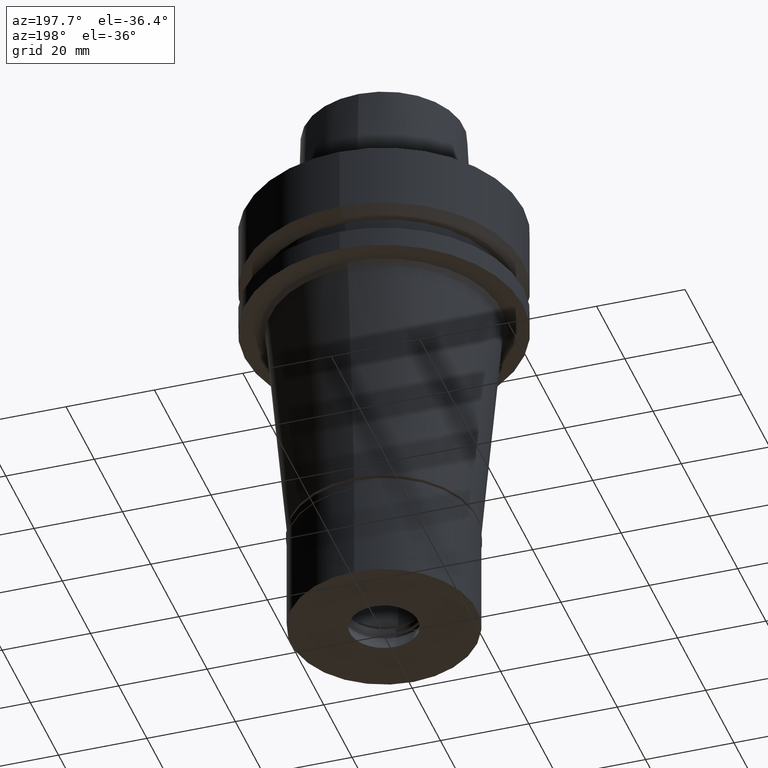
[diagram: clean part render]
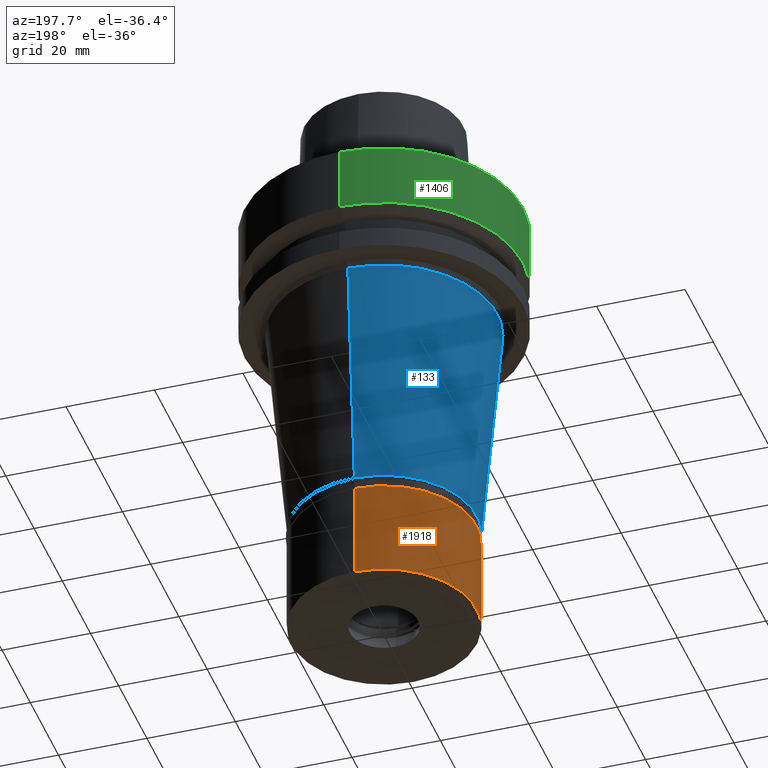
[diagram: same view with three faces highlighted in distinct colors, each labeled with its STEP entity id]
A machine part, auxiliary view with three faces highlighted in distinct colors.
Their STEP definitions:

[orange] entity #1918 — the highlighted cylindrical surface (partial cylindrical patch) has radius 21 mm, axis along (0, 0, -1).
#45 = EDGE_CURVE ( 'NONE', #2351, #1226, #79, .T. ) ;
#79 = LINE ( 'NONE', #92, #368 ) ;
#92 = CARTESIAN_POINT ( 'NONE',  ( 0.0000000000000000000, -21.00000000000000000, -2.000000000000000000 ) ) ;
#155 = AXIS2_PLACEMENT_3D ( 'NONE', #2384, #1733, #2171 ) ;
#188 = LINE ( 'NONE', #846, #569 ) ;
#271 = EDGE_CURVE ( 'NONE', #919, #1226, #467, .T. ) ;
#368 = VECTOR ( 'NONE', #728, 1000.000000000000000 ) ;
#467 = CIRCLE ( 'NONE', #844, 21.00000000000000000 ) ;
#569 = VECTOR ( 'NONE', #1741, 1000.000000000000000 ) ;
#628 = DIRECTION ( 'NONE',  ( 0.0000000000000000000, 0.0000000000000000000, -1.000000000000000000 ) ) ;
#643 = CARTESIAN_POINT ( 'NONE',  ( 0.0000000000000000000, 0.0000000000000000000, -2.000000000000000000 ) ) ;
#644 = DIRECTION ( 'NONE',  ( 0.0000000000000000000, 1.000000000000000000, 0.0000000000000000000 ) ) ;
#728 = DIRECTION ( 'NONE',  ( 0.0000000000000000000, 0.0000000000000000000, -1.000000000000000000 ) ) ;
#829 = CARTESIAN_POINT ( 'NONE',  ( 0.0000000000000000000, 21.00000000000000000, -2.000000000000000000 ) ) ;
#838 = FACE_OUTER_BOUND ( 'NONE', #1267, .T. ) ;
#844 = AXIS2_PLACEMENT_3D ( 'NONE', #2306, #2238, #644 ) ;
#846 = CARTESIAN_POINT ( 'NONE',  ( 0.0000000000000000000, 21.00000000000000000, -2.000000000000000000 ) ) ;
#919 = VERTEX_POINT ( 'NONE', #2776 ) ;
#921 = EDGE_CURVE ( 'NONE', #1183, #919, #188, .T. ) ;
#1034 = CIRCLE ( 'NONE', #2013, 21.00000000000000000 ) ;
#1183 = VERTEX_POINT ( 'NONE', #829 ) ;
#1226 = VERTEX_POINT ( 'NONE', #2485 ) ;
#1267 = EDGE_LOOP ( 'NONE', ( #1940, #2862, #1928, #2222 ) ) ;
#1685 = CARTESIAN_POINT ( 'NONE',  ( 0.0000000000000000000, -21.00000000000000000, -2.000000000000000000 ) ) ;
#1733 = DIRECTION ( 'NONE',  ( 0.0000000000000000000, 0.0000000000000000000, -1.000000000000000000 ) ) ;
#1741 = DIRECTION ( 'NONE',  ( 0.0000000000000000000, 0.0000000000000000000, -1.000000000000000000 ) ) ;
#1918 = ADVANCED_FACE ( 'NONE', ( #838 ), #2411, .T. ) ;
#1928 = ORIENTED_EDGE ( 'NONE', *, *, #2589, .T. ) ;
#1940 = ORIENTED_EDGE ( 'NONE', *, *, #271, .T. ) ;
#1942 = DIRECTION ( 'NONE',  ( 0.0000000000000000000, -1.000000000000000000, 0.0000000000000000000 ) ) ;
#2013 = AXIS2_PLACEMENT_3D ( 'NONE', #643, #628, #1942 ) ;
#2171 = DIRECTION ( 'NONE',  ( 0.0000000000000000000, -1.000000000000000000, 0.0000000000000000000 ) ) ;
#2222 = ORIENTED_EDGE ( 'NONE', *, *, #921, .T. ) ;
#2238 = DIRECTION ( 'NONE',  ( 0.0000000000000000000, 0.0000000000000000000, 1.000000000000000000 ) ) ;
#2306 = CARTESIAN_POINT ( 'NONE',  ( 0.0000000000000000000, 0.0000000000000000000, -24.29999999999999716 ) ) ;
#2351 = VERTEX_POINT ( 'NONE', #1685 ) ;
#2384 = CARTESIAN_POINT ( 'NONE',  ( 0.0000000000000000000, 0.0000000000000000000, 0.0000000000000000000 ) ) ;
#2411 = CYLINDRICAL_SURFACE ( 'NONE', #155, 21.00000000000000000 ) ;
#2485 = CARTESIAN_POINT ( 'NONE',  ( 0.0000000000000000000, -21.00000000000000000, -24.29999999999999716 ) ) ;
#2589 = EDGE_CURVE ( 'NONE', #2351, #1183, #1034, .T. ) ;
#2776 = CARTESIAN_POINT ( 'NONE',  ( 0.0000000000000000000, 21.00000000000000000, -24.29999999999999716 ) ) ;
#2862 = ORIENTED_EDGE ( 'NONE', *, *, #45, .F. ) ;

[blue] entity #133 — the highlighted conical surface has half-angle 5 deg.
#48 = CARTESIAN_POINT ( 'NONE',  ( 0.0000000000000000000, 21.00000000000000000, -79.90000000000000568 ) ) ;
#99 = CARTESIAN_POINT ( 'NONE',  ( 0.0000000000000000000, -25.62815030052000154, -27.00000000000000000 ) ) ;
#133 = ADVANCED_FACE ( 'NONE', ( #1106 ), #1209, .T. ) ;
#171 = EDGE_CURVE ( 'NONE', #2804, #1711, #1212, .T. ) ;
#247 = DIRECTION ( 'NONE',  ( 0.0000000000000000000, 0.0000000000000000000, -1.000000000000000000 ) ) ;
#431 = CARTESIAN_POINT ( 'NONE',  ( 0.0000000000000000000, 0.0000000000000000000, -79.90000000000000568 ) ) ;
#451 = DIRECTION ( 'NONE',  ( 0.0000000000000000000, 1.000000000000000000, 0.0000000000000000000 ) ) ;
#541 = VERTEX_POINT ( 'NONE', #2055 ) ;
#815 = ORIENTED_EDGE ( 'NONE', *, *, #171, .T. ) ;
#930 = CARTESIAN_POINT ( 'NONE',  ( 0.0000000000000000000, -25.62815030052000154, -27.00000000000000000 ) ) ;
#989 = CIRCLE ( 'NONE', #1605, 21.00000000000000000 ) ;
#996 = ORIENTED_EDGE ( 'NONE', *, *, #1381, .T. ) ;
#1099 = DIRECTION ( 'NONE',  ( 0.0000000000000000000, -0.08715574274765398866, -0.9961946980917458783 ) ) ;
#1106 = FACE_OUTER_BOUND ( 'NONE', #1470, .T. ) ;
#1120 = CARTESIAN_POINT ( 'NONE',  ( 0.0000000000000000000, 0.0000000000000000000, -53.44999999999999574 ) ) ;
#1192 = ORIENTED_EDGE ( 'NONE', *, *, #1216, .F. ) ;
#1209 = CONICAL_SURFACE ( 'NONE', #2818, 23.31407515026000254, 0.08726646259969973729 ) ;
#1212 = CIRCLE ( 'NONE', #2819, 25.62815030052000154 ) ;
#1216 = EDGE_CURVE ( 'NONE', #2804, #541, #2360, .T. ) ;
#1308 = LINE ( 'NONE', #2845, #1884 ) ;
#1381 = EDGE_CURVE ( 'NONE', #2063, #541, #989, .T. ) ;
#1470 = EDGE_LOOP ( 'NONE', ( #996, #1192, #815, #1863 ) ) ;
#1564 = DIRECTION ( 'NONE',  ( 0.0000000000000000000, 0.0000000000000000000, 1.000000000000000000 ) ) ;
#1605 = AXIS2_PLACEMENT_3D ( 'NONE', #431, #1564, #2847 ) ;
#1624 = DIRECTION ( 'NONE',  ( 0.0000000000000000000, -1.000000000000000000, 0.0000000000000000000 ) ) ;
#1647 = VECTOR ( 'NONE', #2772, 1000.000000000000000 ) ;
#1711 = VERTEX_POINT ( 'NONE', #2114 ) ;
#1863 = ORIENTED_EDGE ( 'NONE', *, *, #1886, .T. ) ;
#1884 = VECTOR ( 'NONE', #1099, 1000.000000000000000 ) ;
#1886 = EDGE_CURVE ( 'NONE', #1711, #2063, #1308, .T. ) ;
#2022 = DIRECTION ( 'NONE',  ( 0.0000000000000000000, 0.0000000000000000000, 1.000000000000000000 ) ) ;
#2055 = CARTESIAN_POINT ( 'NONE',  ( 0.0000000000000000000, -21.00000000000000000, -79.90000000000000568 ) ) ;
#2063 = VERTEX_POINT ( 'NONE', #48 ) ;
#2114 = CARTESIAN_POINT ( 'NONE',  ( 0.0000000000000000000, 25.62815030052000154, -27.00000000000000000 ) ) ;
#2236 = CARTESIAN_POINT ( 'NONE',  ( 0.0000000000000000000, 0.0000000000000000000, -27.00000000000000000 ) ) ;
#2360 = LINE ( 'NONE', #99, #1647 ) ;
#2772 = DIRECTION ( 'NONE',  ( 0.0000000000000000000, 0.08715574274765398866, -0.9961946980917458783 ) ) ;
#2804 = VERTEX_POINT ( 'NONE', #930 ) ;
#2818 = AXIS2_PLACEMENT_3D ( 'NONE', #1120, #2022, #451 ) ;
#2819 = AXIS2_PLACEMENT_3D ( 'NONE', #2236, #247, #1624 ) ;
#2845 = CARTESIAN_POINT ( 'NONE',  ( 0.0000000000000000000, 25.62815030052000154, -27.00000000000000000 ) ) ;
#2847 = DIRECTION ( 'NONE',  ( 0.0000000000000000000, 1.000000000000000000, 0.0000000000000000000 ) ) ;

[green] entity #1406 — the highlighted cylindrical surface (partial cylindrical patch) has radius 31.5 mm, axis along (0, 0, 1).
#11 = VECTOR ( 'NONE', #1706, 1000.000000000000000 ) ;
#26 = CARTESIAN_POINT ( 'NONE',  ( 0.0000000000000000000, 31.50000000000000000, 0.0000000000000000000 ) ) ;
#63 = AXIS2_PLACEMENT_3D ( 'NONE', #2061, #2679, #1353 ) ;
#169 = CYLINDRICAL_SURFACE ( 'NONE', #333, 31.50000000000000000 ) ;
#183 = DIRECTION ( 'NONE',  ( 0.0000000000000000000, 1.000000000000000000, 0.0000000000000000000 ) ) ;
#333 = AXIS2_PLACEMENT_3D ( 'NONE', #402, #1298, #183 ) ;
#402 = CARTESIAN_POINT ( 'NONE',  ( 0.0000000000000000000, 0.0000000000000000000, -103.6250000000000000 ) ) ;
#420 = VERTEX_POINT ( 'NONE', #1987 ) ;
#472 = AXIS2_PLACEMENT_3D ( 'NONE', #2794, #857, #1340 ) ;
#550 = VERTEX_POINT ( 'NONE', #2428 ) ;
#822 = ORIENTED_EDGE ( 'NONE', *, *, #1094, .T. ) ;
#857 = DIRECTION ( 'NONE',  ( 0.0000000000000000000, 0.0000000000000000000, -1.000000000000000000 ) ) ;
#994 = CARTESIAN_POINT ( 'NONE',  ( 0.0000000000000000000, -31.50000000000000000, -14.62250092523999889 ) ) ;
#1054 = VERTEX_POINT ( 'NONE', #26 ) ;
#1094 = EDGE_CURVE ( 'NONE', #1054, #420, #1378, .T. ) ;
#1278 = EDGE_LOOP ( 'NONE', ( #2700, #2744, #2529, #822 ) ) ;
#1298 = DIRECTION ( 'NONE',  ( 0.0000000000000000000, 0.0000000000000000000, 1.000000000000000000 ) ) ;
#1327 = CIRCLE ( 'NONE', #63, 31.50000000000000000 ) ;
#1340 = DIRECTION ( 'NONE',  ( 0.0000000000000000000, -1.000000000000000000, 0.0000000000000000000 ) ) ;
#1353 = DIRECTION ( 'NONE',  ( 0.0000000000000000000, 1.000000000000000000, 0.0000000000000000000 ) ) ;
#1378 = LINE ( 'NONE', #1881, #11 ) ;
#1406 = ADVANCED_FACE ( 'NONE', ( #2164 ), #169, .T. ) ;
#1487 = EDGE_CURVE ( 'NONE', #420, #2432, #1327, .T. ) ;
#1706 = DIRECTION ( 'NONE',  ( 0.0000000000000000000, 4.130355870612999632E-14, -1.000000000000000000 ) ) ;
#1881 = CARTESIAN_POINT ( 'NONE',  ( 0.0000000000000000000, 31.50000000000000000, 0.0000000000000000000 ) ) ;
#1986 = EDGE_CURVE ( 'NONE', #550, #1054, #2108, .T. ) ;
#1987 = CARTESIAN_POINT ( 'NONE',  ( 0.0000000000000000000, 31.50000000000000000, -14.62250092523999889 ) ) ;
#2061 = CARTESIAN_POINT ( 'NONE',  ( 0.0000000000000000000, 0.0000000000000000000, -14.62250092523999889 ) ) ;
#2108 = CIRCLE ( 'NONE', #472, 31.50000000000000000 ) ;
#2164 = FACE_OUTER_BOUND ( 'NONE', #1278, .T. ) ;
#2242 = CARTESIAN_POINT ( 'NONE',  ( 0.0000000000000000000, -31.50000000000000000, 0.0000000000000000000 ) ) ;
#2266 = DIRECTION ( 'NONE',  ( 0.0000000000000000000, -4.130355870612999632E-14, -1.000000000000000000 ) ) ;
#2428 = CARTESIAN_POINT ( 'NONE',  ( 0.0000000000000000000, -31.50000000000000000, 0.0000000000000000000 ) ) ;
#2432 = VERTEX_POINT ( 'NONE', #994 ) ;
#2473 = LINE ( 'NONE', #2242, #2695 ) ;
#2529 = ORIENTED_EDGE ( 'NONE', *, *, #1986, .T. ) ;
#2679 = DIRECTION ( 'NONE',  ( 0.0000000000000000000, 0.0000000000000000000, 1.000000000000000000 ) ) ;
#2695 = VECTOR ( 'NONE', #2266, 1000.000000000000000 ) ;
#2700 = ORIENTED_EDGE ( 'NONE', *, *, #1487, .T. ) ;
#2744 = ORIENTED_EDGE ( 'NONE', *, *, #2844, .F. ) ;
#2794 = CARTESIAN_POINT ( 'NONE',  ( 0.0000000000000000000, 0.0000000000000000000, 0.0000000000000000000 ) ) ;
#2844 = EDGE_CURVE ( 'NONE', #550, #2432, #2473, .T. ) ;